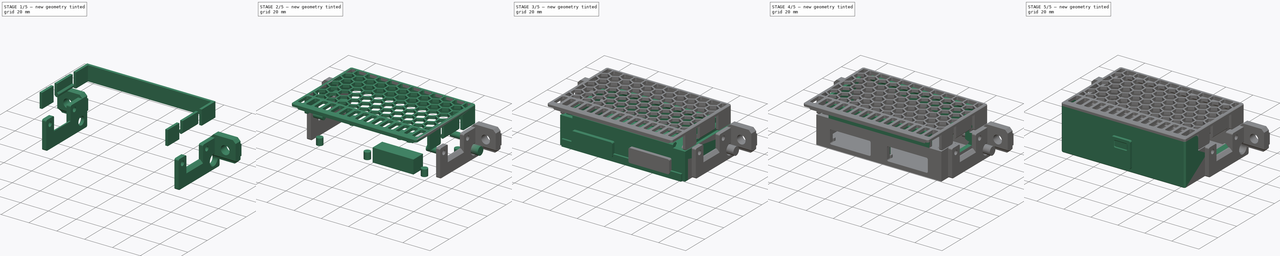
[diagram: build sequence overview — one tinted view per stage of 5, left to right]
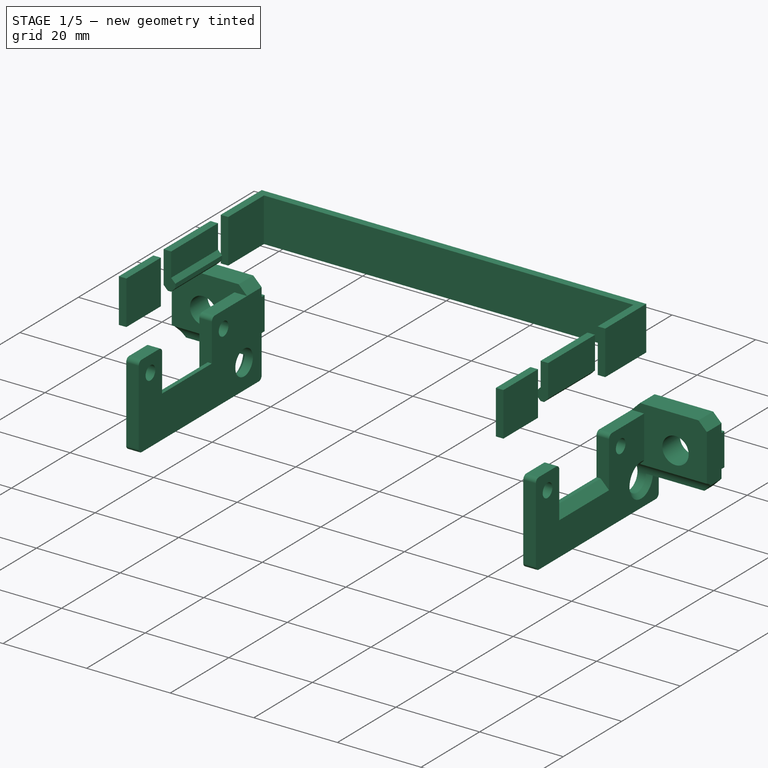
[diagram: stage 1 of 5 — iso view after this stage's code; geometry added in this stage tinted green]
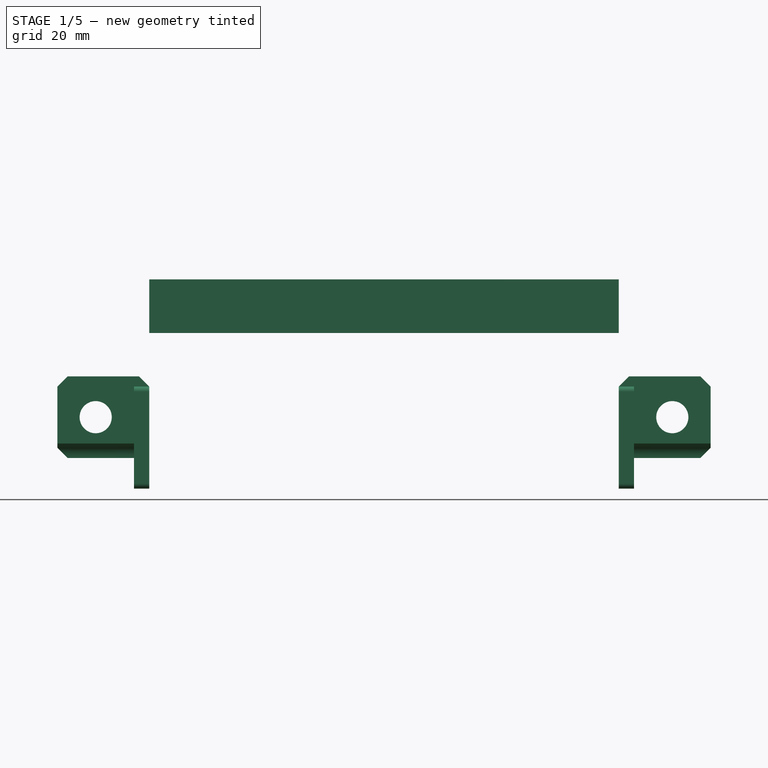
[diagram: stage 1 of 5 — front view after this stage's code; geometry added in this stage tinted green]
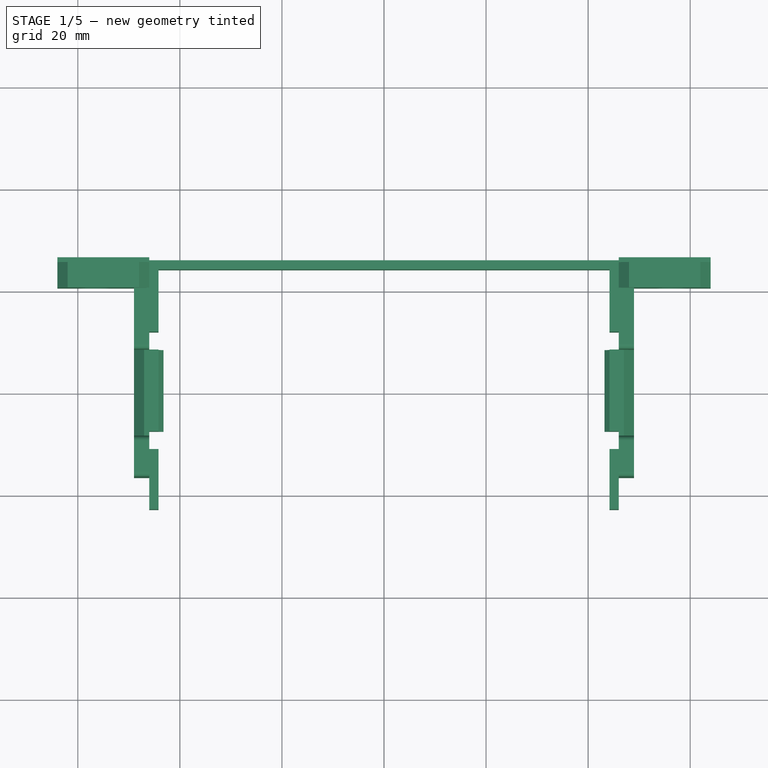
[diagram: stage 1 of 5 — top view after this stage's code; geometry added in this stage tinted green]
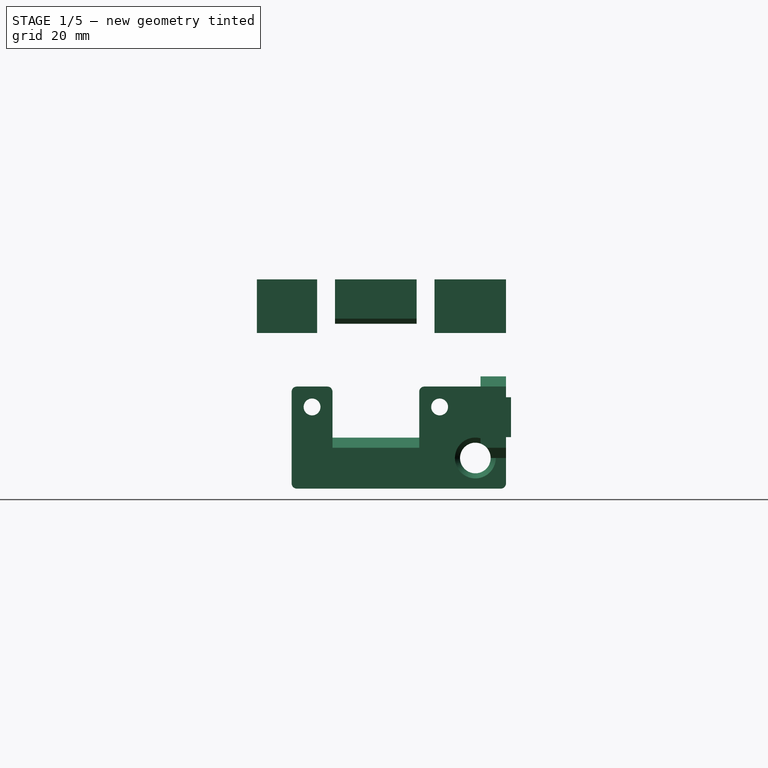
[diagram: stage 1 of 5 — right view after this stage's code; geometry added in this stage tinted green]
FCSTD DOCUMENT  (FreeCAD 0.19R24291 (Git))
Label: air-filter-4010-blower
License: Other
LicenseURL: GPL3
objects: Part::Box×53, Part::Feature×43, Part::MultiFuse×35, Part::Cylinder×27, Part::Chamfer×19, Part::Cut×19, Part::Fillet×15, Sketcher::SketchObject×3, PartDesign::Body×2, Part::Refine×2, PartDesign::AdditiveLoft×1, PartDesign::Pad×1, Part::MultiCommon×1, Part::Mirroring×1
note: 224 computed .brp shape members not serialized (recipe doc carries the construction recipe); baked Part::Feature solids carry a one-line shape summary decoded from their .brp

FEATURE [Part::Box] Box031  label="Cube031"
  AttacherType = Attacher::AttachEngine3D
  Height = 10.5
  Length = 92
  Placement = pos=(-46,23.7,30.5) rot=(0,0,1;0rad)
  Width = 1.8
FEATURE [Part::Box] Box033  label="Cube033"
  AttacherType = Attacher::AttachEngine3D
  Height = 10.5
  Length = 1.8
  Placement = pos=(-46,11.5,30.5) rot=(0,0,1;0rad)
  Width = 14
FEATURE [Part::Box] Box034  label="Cube034"
  AttacherType = Attacher::AttachEngine3D
  Height = 10.5
  Length = 1.8
  Placement = pos=(44.2,11.5,30.5) rot=(0,0,1;0rad)
  Width = 14
FEATURE [Part::Box] Box035  label="Cube035"
  AttacherType = Attacher::AttachEngine3D
  Height = 10.5
  Length = 1.8
  Placement = pos=(-46,-23.3,30.5) rot=(0,0,1;0rad)
  Width = 11.8
FEATURE [Part::Box] Box036  label="Cube036"
  AttacherType = Attacher::AttachEngine3D
  Height = 10.5
  Length = 1.8
  Placement = pos=(44.2,-23.3,30.5) rot=(0,0,1;0rad)
  Width = 11.8
FEATURE [Part::Box] Box037  label="Cube037"
  AttacherType = Attacher::AttachEngine3D
  Height = 7
  Length = 1.8
  Placement = pos=(-46,-8,34) rot=(0,0,1;0rad)
  Width = 16
FEATURE [Part::Box] Box038  label="Cube038"
  AttacherType = Attacher::AttachEngine3D
  Height = 7
  Length = 1.8
  Placement = pos=(44.2,-8,34) rot=(0,0,1;0rad)
  Width = 16
FEATURE [Part::Box] Box039  label="Cube039"
  AttacherType = Attacher::AttachEngine3D
  Height = 3
  Length = 2.8
  Placement = pos=(-46,-8,31) rot=(0,0,1;0rad)
  Width = 16
FEATURE [Part::Box] Box040  label="Cube040"
  AttacherType = Attacher::AttachEngine3D
  Height = 3
  Length = 2.8
  Placement = pos=(43.2,-8,31) rot=(0,0,1;0rad)
  Width = 16
FEATURE [Part::Chamfer] Chamfer005
  Base = -> Box039
  Edges = 2 edges r=1: [Edge6,Edge8]
  Placement = pos=(0,0,1.3) rot=(0,0,1;0rad)
FEATURE [Part::Chamfer] Chamfer006
  Base = -> Box040
  Edges = 2 edges r=1: [Edge2,Edge4]
  Placement = pos=(0,0,1.3) rot=(0,0,1;0rad)
FEATURE [Part::MultiFuse] Fusion001021003
  Shapes = -> [Chamfer006,Chamfer005,Box038,Box037]
FEATURE [Part::Chamfer] Chamfer007
  Base = -> Fusion001021003
  Edges = 2 edges r=1: [Edge22,Edge57]
FEATURE [Part::Cylinder] Cylinder046
  Angle = 360
  AttacherType = Attacher::AttachEngine3D
  Height = 23
  Placement = pos=(37,-12.5,16) rot=(0,1,0;1.5708rad)
  Radius = 1.65
FEATURE [Part::Cylinder] Cylinder047
  Angle = 360
  AttacherType = Attacher::AttachEngine3D
  Height = 23
  Placement = pos=(37,12.5,16) rot=(0,1,0;1.5708rad)
  Radius = 1.65
FEATURE [Part::Box] Box078  label="Cube076"
  AttacherType = Attacher::AttachEngine3D
  Height = 20
  Length = 3
  Placement = pos=(46,-16.5,0) rot=(0,0,1;0rad)
  Width = 8
FEATURE [Part::Box] Box079  label="Cube077"
  AttacherType = Attacher::AttachEngine3D
  Height = 20
  Length = 3
  Placement = pos=(46,8.5,0) rot=(0,0,1;0rad)
  Width = 17
FEATURE [Part::Box] Box080  label="Cube078"
  AttacherType = Attacher::AttachEngine3D
  Height = 10
  Length = 3
  Placement = pos=(46,-8.5,0) rot=(0,0,1;0rad)
  Width = 17
FEATURE [Part::Chamfer] Chamfer010015011014
  Base = -> Box080
  Edges = 1 edges r=2: [Edge6]
FEATURE [Part::Box] Box081  label="Cube079"
  AttacherType = Attacher::AttachEngine3D
  Height = 16
  Length = 18
  Placement = pos=(46,20.5,6) rot=(0,0,1;0rad)
  Width = 5
FEATURE [Part::Cylinder] Cylinder054
  Angle = 360
  AttacherType = Attacher::AttachEngine3D
  Height = 10
  Placement = pos=(56.5,17.5,14) rot=(0.57735,-0.57735,-0.57735;4.18879rad)
  Radius = 3.15
FEATURE [Part::Cylinder] Cylinder055
  Angle = 360
  AttacherType = Attacher::AttachEngine3D
  Height = 26
  Placement = pos=(40,19.5,6) rot=(0,1,0;1.5708rad)
  Radius = 3
FEATURE [Part::Fillet] Fillet005015030019016
  Base = -> Box078
  Edges = 3 edges r=1: [Edge9,Edge10,Edge12]
FEATURE [Part::Fillet] Fillet005015030019017
  Base = -> Box079
  Edges = 2 edges r=1: [Edge10,Edge11]
FEATURE [Part::Chamfer] Chamfer010015011015
  Base = -> Box081
  Edges = 3 edges r=2: [Edge2,Edge6,Edge8]
FEATURE [Part::MultiFuse] Fusion001021004009015013018008006003
  Shapes = -> [Cylinder046,Cylinder047]
FEATURE [Part::Box] Box082  label="Cube080"
  AttacherType = Attacher::AttachEngine3D
  Height = 7.8
  Length = 18
  Placement = pos=(46,25.5,10.1) rot=(0,0,1;0rad)
  Width = 1
FEATURE [Part::MultiFuse] Fusion001021004009015013018008006004
  Shapes = -> [Chamfer010015011015,Box082]
FEATURE [Part::Cut] Cut019003010005001012
  Base = -> Fusion001021004009015013018008006004
  Tool = -> Cylinder054
FEATURE [Part::MultiFuse] Fusion001021004009015013018008006005
  Shapes = -> [Cut019003010005001012,Fillet005015030019017,Chamfer010015011014,Fillet005015030019016]
FEATURE [Part::Cut] Cut019003010005001013
  Base = -> Fusion001021004009015013018008006005
  Tool = -> Fusion001021004009015013018008006003
FEATURE [Part::Cut] Cut019003010005001014
  Base = -> Cut019003010005001013
  Tool = -> Cylinder055
FEATURE [Part::Chamfer] Chamfer010015011016
  Base = -> Cut019003010005001014
  Edges = 1 edges r=1: [Edge35]
FEATURE [Part::Feature] Chamfer010015011016001
  shape: bbox 18 x 43 x 22 mm, 45 faces (baked)
FEATURE [Part::Mirroring] Part__Mirroring  label="Chamfer010015011016001 (Mirror #1)"
  Base = (0,0,0)
  Normal = (1,0,0)
  Source = -> Chamfer010015011016001
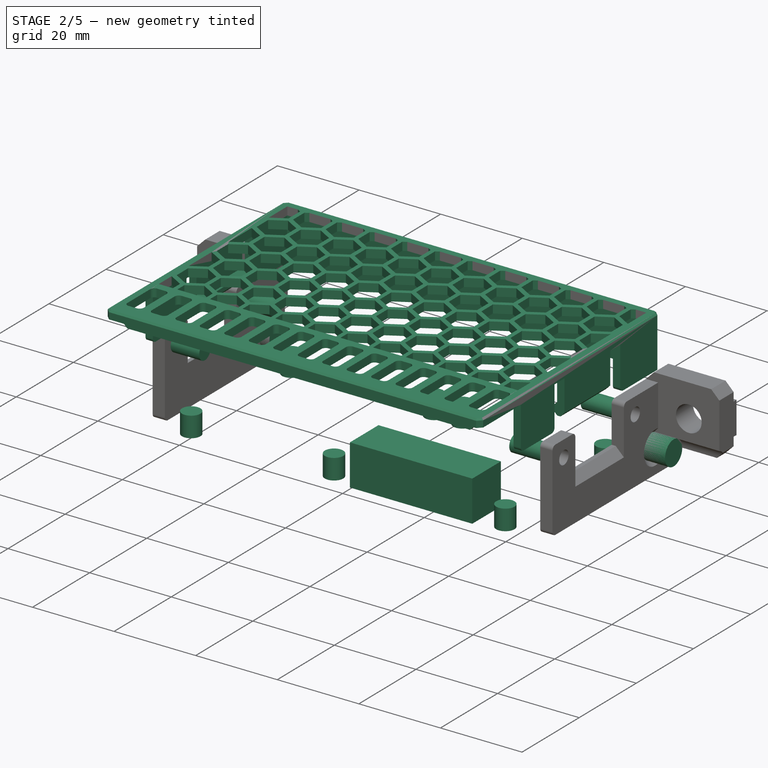
[diagram: stage 2 of 5 — iso view after this stage's code; geometry added in this stage tinted green]
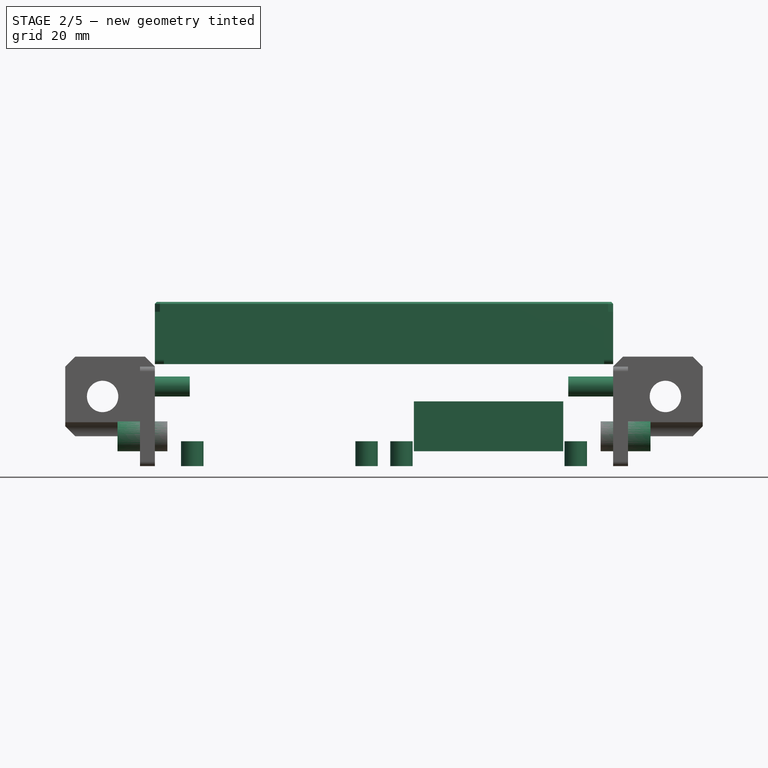
[diagram: stage 2 of 5 — front view after this stage's code; geometry added in this stage tinted green]
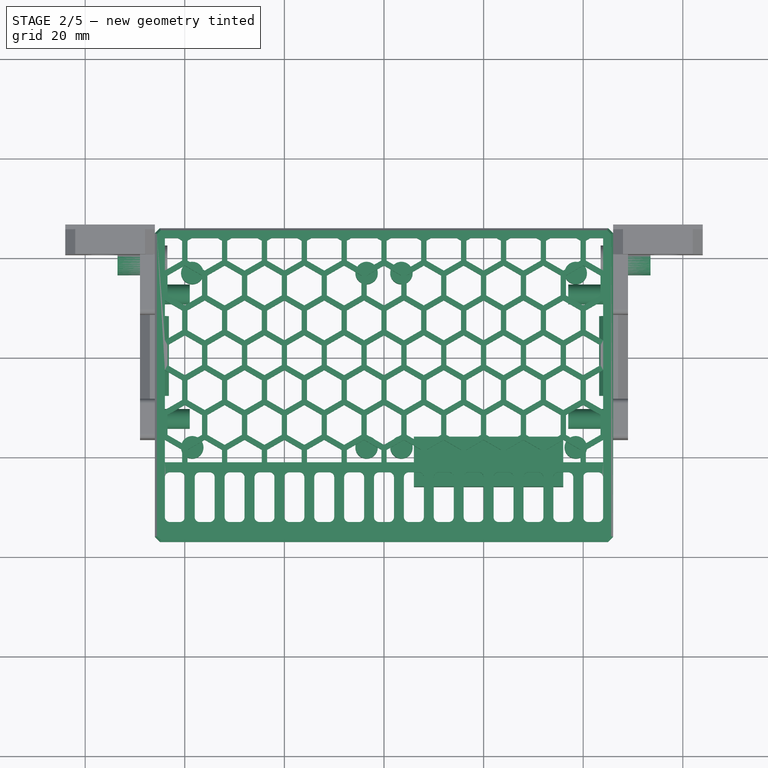
[diagram: stage 2 of 5 — top view after this stage's code; geometry added in this stage tinted green]
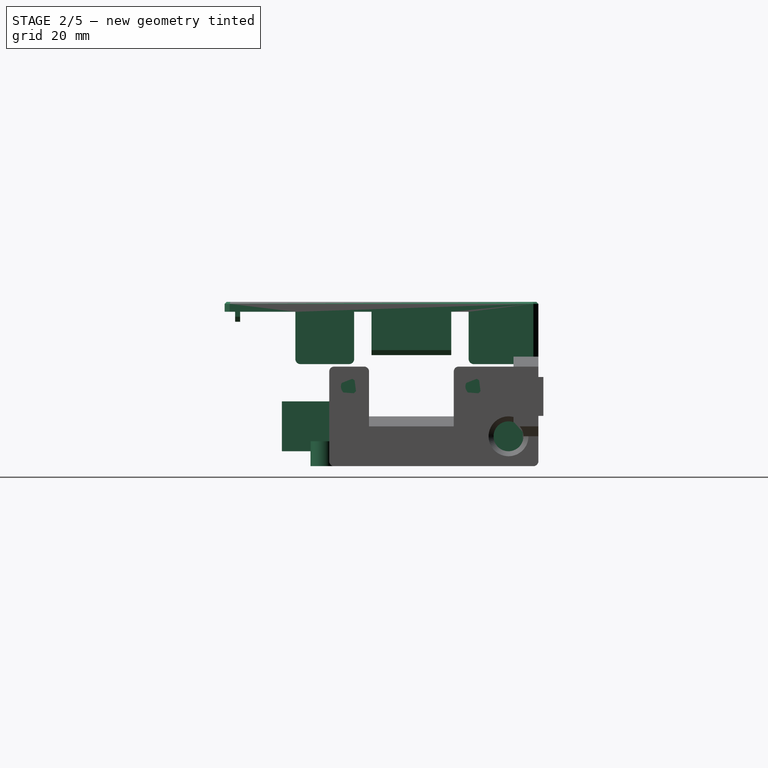
[diagram: stage 2 of 5 — right view after this stage's code; geometry added in this stage tinted green]
FEATURE [Part::Box] Box041  label="Cube041"
  AttacherType = Attacher::AttachEngine3D
  Height = 2
  Length = 92
  Placement = pos=(-46,-24,41) rot=(0,0,1;0rad)
  Width = 49.5
FEATURE [Part::Feature] Body002001  label="hex"
  Placement = pos=(0,0,36) rot=(0,0,1;0rad)
  shape: bbox 6.928 x 8 x 10 mm, 8 faces (baked)
FEATURE [Part::Feature] Body002002  label="hex001"
  Placement = pos=(8,0,36) rot=(0,0,1;0rad)
  shape: bbox 6.928 x 8 x 10 mm, 8 faces (baked)
FEATURE [Part::Feature] Body002003  label="hex002"
  Placement = pos=(16,0,36) rot=(0,0,1;0rad)
  shape: bbox 6.928 x 8 x 10 mm, 8 faces (baked)
FEATURE [Part::Feature] Body002004  label="hex003"
  Placement = pos=(24,0,36) rot=(0,0,1;0rad)
  shape: bbox 6.928 x 8 x 10 mm, 8 faces (baked)
FEATURE [Part::Feature] Body002005  label="hex004"
  Placement = pos=(32,0,36) rot=(0,0,1;0rad)
  shape: bbox 6.928 x 8 x 10 mm, 8 faces (baked)
FEATURE [Part::Feature] Body002006  label="hex005"
  Placement = pos=(40,0,36) rot=(0,0,1;0rad)
  shape: bbox 6.928 x 8 x 10 mm, 8 faces (baked)
FEATURE [Part::Feature] Body002007  label="hex006"
  Placement = pos=(-8,0,36) rot=(0,0,1;0rad)
  shape: bbox 6.928 x 8 x 10 mm, 8 faces (baked)
FEATURE [Part::Feature] Body002008  label="hex007"
  Placement = pos=(-16,0,36) rot=(0,0,1;0rad)
  shape: bbox 6.928 x 8 x 10 mm, 8 faces (baked)
FEATURE [Part::Feature] Body002009  label="hex008"
  Placement = pos=(-24,0,36) rot=(0,0,1;0rad)
  shape: bbox 6.928 x 8 x 10 mm, 8 faces (baked)
FEATURE [Part::Feature] Body002010  label="hex009"
  Placement = pos=(-32,0,36) rot=(0,0,1;0rad)
  shape: bbox 6.928 x 8 x 10 mm, 8 faces (baked)
FEATURE [Part::Feature] Body002011  label="hex010"
  Placement = pos=(-40,0,36) rot=(0,0,1;0rad)
  shape: bbox 6.928 x 8 x 10 mm, 8 faces (baked)
FEATURE [Part::Feature] Body002012  label="hex011"
  Placement = pos=(-48,0,36) rot=(0,0,1;0rad)
  shape: bbox 6.928 x 8 x 10 mm, 8 faces (baked)
FEATURE [Part::Feature] Body002013  label="hex012"
  Placement = pos=(48,0,36) rot=(0,0,1;0rad)
  shape: bbox 6.928 x 8 x 10 mm, 8 faces (baked)
FEATURE [Part::MultiFuse] Fusion001021004
  Shapes = -> [Body002013,Body002012,Body002011,Body002009,Body002010,Body002008,Body002007,Body002006,Body002005,Body002004,Body002003,Body002002,Body002001]
FEATURE [Part::Feature] Fusion001021004001
  Placement = pos=(4,7,0) rot=(0,0,1;0rad)
  shape: bbox 102.9 x 8 x 10 mm, 104 faces, 13 solids (baked)
FEATURE [Part::Feature] Fusion001021004002
  Placement = pos=(4,-7,0) rot=(0,0,1;0rad)
  shape: bbox 102.9 x 8 x 10 mm, 104 faces, 13 solids (baked)
FEATURE [Part::Feature] Fusion001021004003
  Placement = pos=(4,-21,0) rot=(0,0,1;0rad)
  shape: bbox 102.9 x 8 x 10 mm, 104 faces, 13 solids (baked)
FEATURE [Part::Feature] Fusion001021004004
  Placement = pos=(4,21,0) rot=(0,0,1;0rad)
  shape: bbox 102.9 x 8 x 10 mm, 104 faces, 13 solids (baked)
FEATURE [Part::Feature] Fusion001021004005
  Placement = pos=(0,14,0) rot=(0,0,1;0rad)
  shape: bbox 102.9 x 8 x 10 mm, 104 faces, 13 solids (baked)
FEATURE [Part::Feature] Fusion001021004006
  Placement = pos=(0,-14,0) rot=(0,0,1;0rad)
  shape: bbox 102.9 x 8 x 10 mm, 104 faces, 13 solids (baked)
FEATURE [Part::MultiFuse] Fusion001021004007
  Shapes = -> [Fusion001021004006,Fusion001021004005,Fusion001021004004,Fusion001021004003,Fusion001021004002,Fusion001021004001,Fusion001021004]
FEATURE [Part::Box] Box042  label="Cube042"
  AttacherType = Attacher::AttachEngine3D
  Height = 2
  Length = 88
  Placement = pos=(-44,-21.5,41) rot=(0,0,1;0rad)
  Width = 45
FEATURE [Part::Box] Box046  label="Cube044"
  AttacherType = Attacher::AttachEngine3D
  Height = 2
  Length = 92
  Placement = pos=(-46,-37.5,41) rot=(0,0,1;0rad)
  Width = 13.5
FEATURE [Part::Box] Box072  label="Cube070"
  AttacherType = Attacher::AttachEngine3D
  Height = 10
  Length = 30
  Placement = pos=(6,-26,3) rot=(0,0,1;0rad)
  Width = 10
FEATURE [Part::Cylinder] Cylinder042
  Angle = 360
  AttacherType = Attacher::AttachEngine3D
  Height = 5
  Placement = pos=(3.5,-18,0) rot=(0,0,1;0rad)
  Radius = 2.25
FEATURE [Part::Cylinder] Cylinder043
  Angle = 360
  AttacherType = Attacher::AttachEngine3D
  Height = 5
  Placement = pos=(38.5,-18,0) rot=(0,0,1;0rad)
  Radius = 2.25
FEATURE [Part::Cylinder] Cylinder044
  Angle = 360
  AttacherType = Attacher::AttachEngine3D
  Height = 5
  Placement = pos=(38.5,17,0) rot=(0,0,1;0rad)
  Radius = 2.25
FEATURE [Part::Cylinder] Cylinder045
  Angle = 360
  AttacherType = Attacher::AttachEngine3D
  Height = 5
  Placement = pos=(3.5,17,0) rot=(0,0,1;0rad)
  Radius = 2.25
FEATURE [Part::MultiFuse] Fusion001021004009015013017
  Shapes = -> [Cylinder045,Cylinder044,Cylinder043,Cylinder042]
FEATURE [Part::Feature] Fusion001021004009015013017001
  Placement = pos=(-42,0,0) rot=(0,0,1;0rad)
  shape: bbox 39.5 x 39.5 x 5 mm, 12 faces, 4 solids (baked)
FEATURE [Part::MultiFuse] Fusion001021004009015013017002
  Shapes = -> [Fusion001021004009015013017001,Fusion001021004009015013017]
FEATURE [Part::Cylinder] Cylinder048
  Angle = 360
  AttacherType = Attacher::AttachEngine3D
  Height = 10
  Placement = pos=(-49,12.5,16) rot=(0,1,0;1.5708rad)
  Radius = 2
FEATURE [Part::Cylinder] Cylinder049
  Angle = 360
  AttacherType = Attacher::AttachEngine3D
  Height = 10
  Placement = pos=(-49,-12.5,16) rot=(0,1,0;1.5708rad)
  Radius = 2
FEATURE [Part::Cylinder] Cylinder050
  Angle = 360
  AttacherType = Attacher::AttachEngine3D
  Height = 10
  Placement = pos=(37,12.5,16) rot=(0,1,0;1.5708rad)
  Radius = 2
FEATURE [Part::Cylinder] Cylinder051
  Angle = 360
  AttacherType = Attacher::AttachEngine3D
  Height = 10
  Placement = pos=(37,-12.5,16) rot=(0,1,0;1.5708rad)
  Radius = 2
FEATURE [Part::MultiFuse] Fusion001021004009015013018006
  Shapes = -> [Cylinder051,Cylinder050,Cylinder049,Cylinder048]
FEATURE [Part::Cylinder] Cylinder052
  Angle = 360
  AttacherType = Attacher::AttachEngine3D
  Height = 10
  Placement = pos=(43.5,19.5,6) rot=(0,1,0;1.5708rad)
  Radius = 3
FEATURE [Part::Cylinder] Cylinder053
  Angle = 360
  AttacherType = Attacher::AttachEngine3D
  Height = 10
  Placement = pos=(-53.5,19.5,6) rot=(0,1,0;1.5708rad)
  Radius = 3
FEATURE [Part::MultiFuse] Fusion001021004009015013018007
  Shapes = -> [Cylinder052,Cylinder053]
FEATURE [Part::Box] Box076  label="Cube074"
  AttacherType = Attacher::AttachEngine3D
  Height = 2
  Length = 86
  Placement = pos=(-43,-35.4,39) rot=(0,0,1;0rad)
  Width = 1
FEATURE [Part::MultiCommon] Common
  Shapes = -> [Box042,Fusion001021004007]
FEATURE [Part::Cut] Cut019003010005001010
  Base = -> Box041
  Tool = -> Common
FEATURE [Part::Chamfer] Chamfer010015011011
  Base = -> Box076
  Edges = 2 edges r=1: [Edge4,Edge8]
FEATURE [Part::MultiFuse] Fusion001021004009015013018008002
  Shapes = -> [Box046,Chamfer010015011011]
FEATURE [Part::Box] Box077  label="Cube075"
  AttacherType = Attacher::AttachEngine3D
  Height = 10
  Length = 4
  Placement = pos=(-2,-33.5,35) rot=(0,0,1;0rad)
  Width = 10
FEATURE [Part::MultiFuse] Fusion001021004009015013018008003
  Shapes = -> [Cut019003010005001010,Fusion001021004009015013018008002]
FEATURE [Part::Fillet] Fillet005015030019
  Base = -> Box077
  Edges = 4 edges r=1: [Edge1,Edge3,Edge5,Edge7]
FEATURE [Part::Feature] Fillet005015030019001
  Placement = pos=(6,0,0) rot=(0,0,1;0rad)
  shape: bbox 4 x 10 x 10 mm, 10 faces (baked)
FEATURE [Part::Feature] Fillet005015030019002
  Placement = pos=(12,0,0) rot=(0,0,1;0rad)
  shape: bbox 4 x 10 x 10 mm, 10 faces (baked)
FEATURE [Part::Feature] Fillet005015030019003
  Placement = pos=(18,0,0) rot=(0,0,1;0rad)
  shape: bbox 4 x 10 x 10 mm, 10 faces (baked)
FEATURE [Part::Feature] Fillet005015030019004
  Placement = pos=(24,0,0) rot=(0,0,1;0rad)
  shape: bbox 4 x 10 x 10 mm, 10 faces (baked)
FEATURE [Part::Feature] Fillet005015030019005
  Placement = pos=(30,0,0) rot=(0,0,1;0rad)
  shape: bbox 4 x 10 x 10 mm, 10 faces (baked)
FEATURE [Part::Feature] Fillet005015030019006
  Placement = pos=(36,0,0) rot=(0,0,1;0rad)
  shape: bbox 4 x 10 x 10 mm, 10 faces (baked)
FEATURE [Part::Feature] Fillet005015030019007
  Placement = pos=(42,0,0) rot=(0,0,1;0rad)
  shape: bbox 4 x 10 x 10 mm, 10 faces (baked)
FEATURE [Part::Feature] Fillet005015030019008
  Placement = pos=(-6,0,0) rot=(0,0,1;0rad)
  shape: bbox 4 x 10 x 10 mm, 10 faces (baked)
FEATURE [Part::Feature] Fillet005015030019009
  Placement = pos=(-12,0,0) rot=(0,0,1;0rad)
  shape: bbox 4 x 10 x 10 mm, 10 faces (baked)
FEATURE [Part::Feature] Fillet005015030019010
  Placement = pos=(-18,0,0) rot=(0,0,1;0rad)
  shape: bbox 4 x 10 x 10 mm, 10 faces (baked)
FEATURE [Part::Feature] Fillet005015030019011
  Placement = pos=(-30,0,0) rot=(0,0,1;0rad)
  shape: bbox 4 x 10 x 10 mm, 10 faces (baked)
FEATURE [Part::Feature] Fillet005015030019012
  Placement = pos=(-24,0,0) rot=(0,0,1;0rad)
  shape: bbox 4 x 10 x 10 mm, 10 faces (baked)
FEATURE [Part::Feature] Fillet005015030019013
  Placement = pos=(-36,0,0) rot=(0,0,1;0rad)
  shape: bbox 4 x 10 x 10 mm, 10 faces (baked)
FEATURE [Part::Feature] Fillet005015030019014
  Placement = pos=(-42,0,0) rot=(0,0,1;0rad)
  shape: bbox 4 x 10 x 10 mm, 10 faces (baked)
FEATURE [Part::MultiFuse] Fusion001021004009015013018008004
  Shapes = -> [Fillet005015030019014,Fillet005015030019001,Fillet005015030019002,Fillet005015030019003,Fillet005015030019004,Fillet005015030019005,Fillet005015030019006,Fillet005015030019007,Fillet005015030019008,Fillet005015030019009,Fillet005015030019010,Fillet005015030019011,Fillet005015030019012,Fillet005015030019013,Fillet005015030019]
FEATURE [Part::Cut] Cut019003010005001011
  Base = -> Fusion001021004009015013018008003
  Tool = -> Fusion001021004009015013018008004
FEATURE [Part::MultiFuse] Fusion001021004009015013018008005
  Shapes = -> [Box035,Chamfer007,Box033,Box036,Box034,Box031]
FEATURE [Part::MultiFuse] Fusion001021004009015013018008006
  Shapes = -> [Fusion001021004009015013018008005,Cut019003010005001011]
FEATURE [Part::Refine] Fusion001021004009015013018008006001
  Source = -> Fusion001021004009015013018008006
FEATURE [Part::Chamfer] Chamfer010015011012
  Base = -> Fusion001021004009015013018008006001
  Edges = 4 edges r=1: [Edge26,Edge28,Edge57,Edge1899]
FEATURE [Part::Fillet] Fillet005015030019015
  Base = -> Chamfer010015011012
  Edges = 6 edges r=1: [Edge666,Edge1296,Edge1304,Edge1308,Edge1333,Edge1338]
FEATURE [Part::Chamfer] Chamfer010015011013
  Base = -> Fillet005015030019015
  Edges = 8 edges r=0.4: [Edge16,Edge29,Edge33,Edge34,Edge35,Edge36,Edge37,Edge38]
  Placement = pos=(0,0,-10) rot=(0,0,1;0rad)
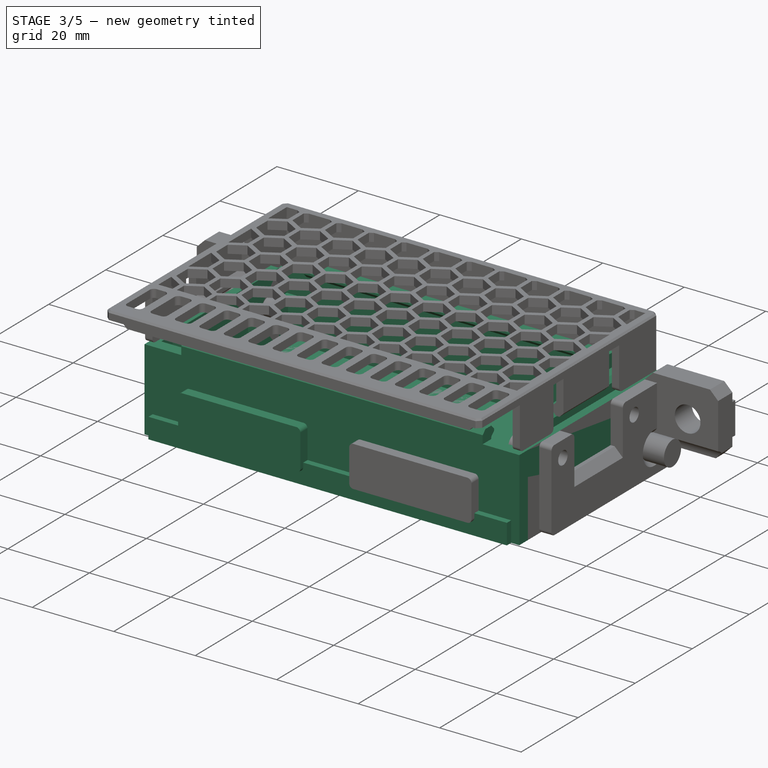
[diagram: stage 3 of 5 — iso view after this stage's code; geometry added in this stage tinted green]
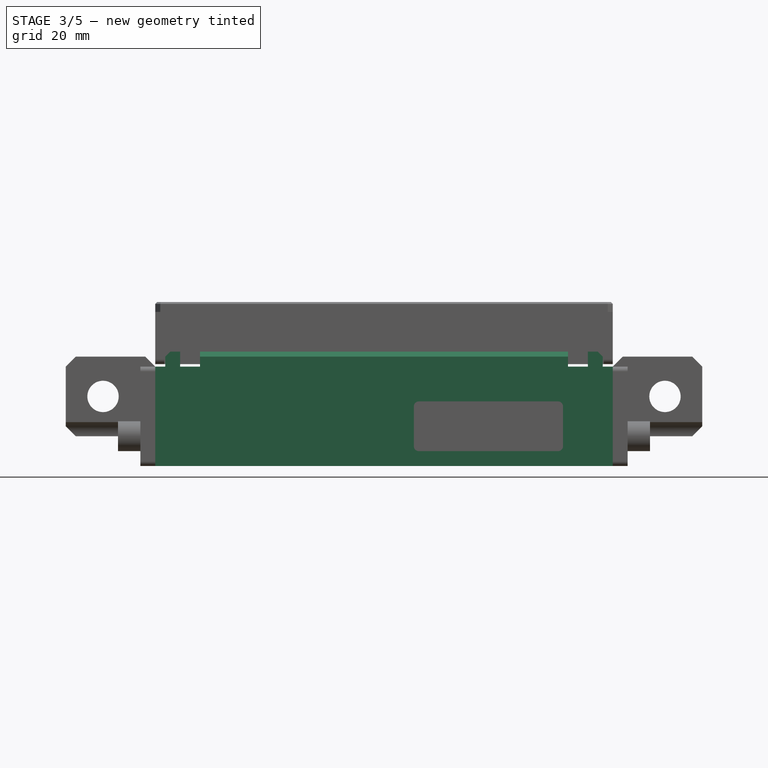
[diagram: stage 3 of 5 — front view after this stage's code; geometry added in this stage tinted green]
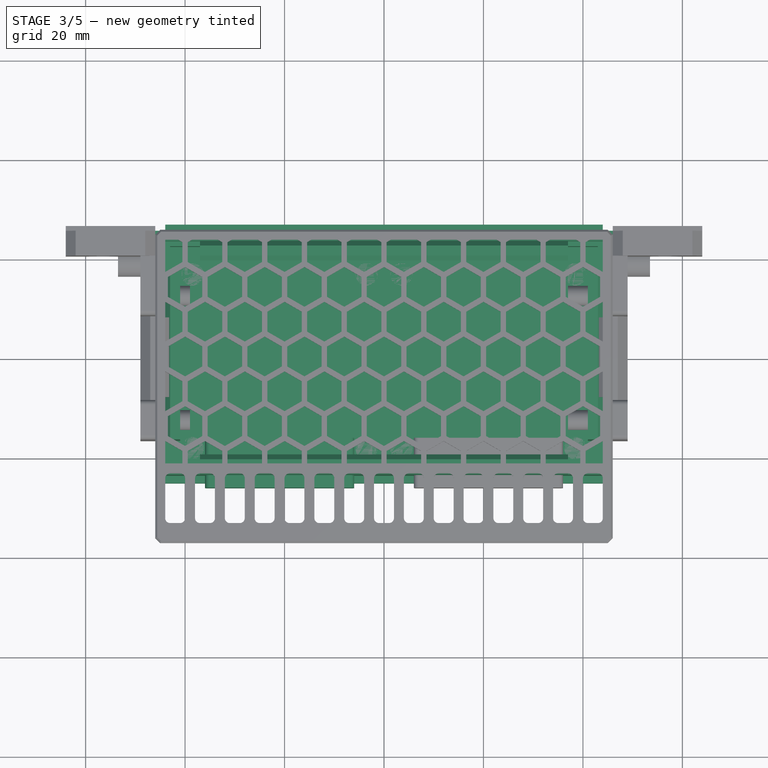
[diagram: stage 3 of 5 — top view after this stage's code; geometry added in this stage tinted green]
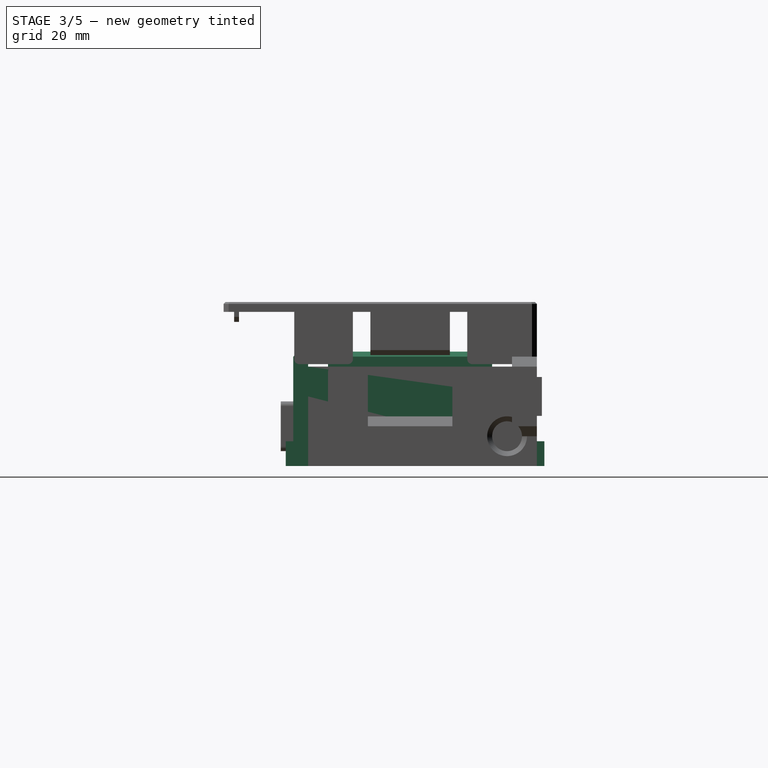
[diagram: stage 3 of 5 — right view after this stage's code; geometry added in this stage tinted green]
FEATURE [Sketcher::SketchObject] Sketch
  AttachmentOffset = pos=(0,0,5) rot=(0,0,1;0rad)
  FullyConstrained = true
  MapMode = 5
  Placement = pos=(0,0,5) rot=(0,0,1;0rad)
  Support = -> [XY_Plane]
  sketch-geometry (4):
    g0: LineSegment StartX=-40 StartY=20 StartZ=0 EndX=40 EndY=20 EndZ=0
    g1: LineSegment StartX=40 StartY=20 StartZ=0 EndX=40 EndY=-20 EndZ=0
    g2: LineSegment StartX=40 StartY=-20 StartZ=0 EndX=-40 EndY=-20 EndZ=0
    g3: LineSegment StartX=-40 StartY=-20 StartZ=0 EndX=-40 EndY=20 EndZ=0
  constraints (12):
    c: Coincident(g0,g1)
    c: Coincident(g1,g2)
    c: Coincident(g2,g3)
    c: Coincident(g3,g0)
    c: Horizontal(g0)
    c: Horizontal(g2)
    c: Vertical(g1)
    c: Vertical(g3)
    c: DistanceX(g0,g0) = 80
    c: DistanceX(g0,g-1) = 40
    c: DistanceY(g3,g3) = 40
    c: DistanceY(g-1,g0) = 20
FEATURE [Sketcher::SketchObject] Sketch001
  FullyConstrained = true
  MapMode = 5
  Support = -> [XY_Plane]
  sketch-geometry (1):
    g0: Circle CenterX=0 CenterY=0 CenterZ=0 NormalX=0 NormalY=0 NormalZ=1 AngleXU=0 Radius=19
  constraints (2):
    c: Coincident(g0,g-1)
    c: Radius(g0) = 19
FEATURE [PartDesign::AdditiveLoft] AdditiveLoft
  Closed = false
  Profile = -> Sketch
  Ruled = true
  Sections = -> [Sketch001]
FEATURE [Part::Box] Box001  label="Cube001"
  AttacherType = Attacher::AttachEngine3D
  Height = 3
  Length = 7
  Placement = pos=(-44,16.5,0) rot=(0,0,1;0rad)
  Width = 7
FEATURE [Part::Box] Box002  label="Cube002"
  AttacherType = Attacher::AttachEngine3D
  Height = 3
  Length = 7
  Placement = pos=(37,16.5,0) rot=(0,0,1;0rad)
  Width = 7
FEATURE [Part::Box] Box003  label="Cube003"
  AttacherType = Attacher::AttachEngine3D
  Height = 3
  Length = 7
  Placement = pos=(37,-23.5,0) rot=(0,0,1;0rad)
  Width = 7
FEATURE [Part::Box] Box004  label="Cube004"
  AttacherType = Attacher::AttachEngine3D
  Height = 18
  Length = 3
  Placement = pos=(-44,-16.5,5) rot=(0,0,1;0rad)
  Width = 33
FEATURE [Part::Box] Box005  label="Cube005"
  AttacherType = Attacher::AttachEngine3D
  Height = 18
  Length = 3
  Placement = pos=(41,-16.5,5) rot=(0,0,1;0rad)
  Width = 33
FEATURE [Part::Box] Box006  label="Cube006"
  AttacherType = Attacher::AttachEngine3D
  Height = 18
  Length = 74
  Placement = pos=(-37,20.5,5) rot=(0,0,1;0rad)
  Width = 3
FEATURE [Part::Box] Box007  label="Cube007"
  AttacherType = Attacher::AttachEngine3D
  Height = 18
  Length = 74
  Placement = pos=(-37,-23.5,5) rot=(0,0,1;0rad)
  Width = 3
FEATURE [Part::Box] Box010  label="Cube010"
  AttacherType = Attacher::AttachEngine3D
  Height = 2.5
  Length = 74
  Placement = pos=(-37,19.5,21) rot=(0,0,1;0rad)
  Width = 2
FEATURE [Part::Box] Box011  label="Cube011"
  AttacherType = Attacher::AttachEngine3D
  Height = 2.5
  Length = 74
  Placement = pos=(-37,-21.5,21) rot=(0,0,1;0rad)
  Width = 2
FEATURE [Part::MultiFuse] Fusion001005
  Shapes = -> [Box004,Box007,Box006,Box005]
FEATURE [Part::Chamfer] Chamfer001
  Base = -> Fusion001005
  Edges = 4 edges r=1: [Edge2,Edge22,Edge36,Edge42]
FEATURE [PartDesign::Pad] Pad
  Direction = (1,1,1)
  Length = 5
  Length2 = 100
  Profile = -> Sketch002
  Type = 0
FEATURE [PartDesign::Body] Body001  label="duct-plate"
  Group = -> [Sketch002,Pad]
  Origin = -> Origin001
  Tip = -> Pad
FEATURE [Part::Cut] Cut
  Base = -> Body001
  Tool = -> Body
FEATURE [Part::Box] Box012  label="Cube012"
  AttacherType = Attacher::AttachEngine3D
  Height = 10
  Length = 10
  Placement = pos=(38,-8.5,5) rot=(0,0,1;0rad)
  Width = 17
FEATURE [Part::Box] Box013  label="Cube013"
  AttacherType = Attacher::AttachEngine3D
  Height = 10
  Length = 10
  Placement = pos=(-47,-8.5,5) rot=(0,0,1;0rad)
  Width = 17
FEATURE [Part::MultiFuse] Fusion001009
  Shapes = -> [Box013,Box012]
FEATURE [Part::Box] Box014  label="Cube014"
  AttacherType = Attacher::AttachEngine3D
  Height = 3
  Length = 92
  Placement = pos=(-46,-23.5,0) rot=(0,0,1;0rad)
  Width = 49
FEATURE [Part::Box] Box015  label="Cube015"
  AttacherType = Attacher::AttachEngine3D
  Height = 14
  Length = 3
  Placement = pos=(-46,-23.5,0) rot=(0,0,1;0rad)
  Width = 49
FEATURE [Part::Box] Box016  label="Cube016"
  AttacherType = Attacher::AttachEngine3D
  Height = 14
  Length = 3
  Placement = pos=(43,-23.5,0) rot=(0,0,1;0rad)
  Width = 49
FEATURE [Part::Box] Box017  label="Cube017"
  AttacherType = Attacher::AttachEngine3D
  Height = 14
  Length = 92
  Placement = pos=(-46,22.5,0) rot=(0,0,1;0rad)
  Width = 3
FEATURE [Part::Box] Box018  label="Cube018"
  AttacherType = Attacher::AttachEngine3D
  Height = 20
  Length = 2
  Placement = pos=(-46,-23.5,0) rot=(0,0,1;0rad)
  Width = 49
FEATURE [Part::Box] Box019  label="Cube019"
  AttacherType = Attacher::AttachEngine3D
  Height = 20
  Length = 2
  Placement = pos=(44,-23.5,0) rot=(0,0,1;0rad)
  Width = 49
FEATURE [Part::Box] Box020  label="Cube020"
  AttacherType = Attacher::AttachEngine3D
  Height = 20
  Length = 92
  Placement = pos=(-46,23.5,0) rot=(0,0,1;0rad)
  Width = 2
FEATURE [Part::Box] Box026  label="Cube026"
  AttacherType = Attacher::AttachEngine3D
  Height = 20
  Length = 92
  Placement = pos=(-46,-23.5,0) rot=(0,0,1;0rad)
  Width = 3
FEATURE [Part::MultiFuse] Fusion001021004009015002
  Shapes = -> [Box011,Box010]
FEATURE [Part::Chamfer] Chamfer
  Base = -> Fusion001021004009015002
  Edges = 4 edges r=1: [Edge11,Edge12,Edge21,Edge22]
  Placement = pos=(0,0,-0.5) rot=(0,0,1;0rad)
FEATURE [Part::MultiFuse] Fusion001021004009015003
  Shapes = -> [Chamfer,Chamfer001]
FEATURE [Part::Cut] Cut015
  Base = -> Fusion001021004009015003
  Tool = -> Fusion001009
FEATURE [Part::Box] Box068  label="Cube066"
  AttacherType = Attacher::AttachEngine3D
  Height = 5
  Length = 88
  Placement = pos=(-44,-25,0) rot=(0,0,1;0rad)
  Width = 52
FEATURE [Part::MultiFuse] Fusion001021004009015013011
  Shapes = -> [Box026,Box014,Box015,Box016,Box017,Box018,Box019,Box020]
FEATURE [Part::Feature] Fusion036012039009  label="4010-fan001"
  Placement = pos=(-21.1,-20.5,3) rot=(-1,0,0;1.5708rad)
  shape: bbox 40 x 40 x 10 mm, 256 faces, 2 solids (baked)
FEATURE [Part::Feature] Fusion001021004009015013015  label="4010-fan002"
  Placement = pos=(20.9,-20.5,3) rot=(-1,0,0;1.5708rad)
  shape: bbox 40 x 40 x 10 mm, 256 faces, 2 solids (baked)
FEATURE [Part::Box] Box071  label="Cube069"
  AttacherType = Attacher::AttachEngine3D
  Height = 10
  Length = 30
  Placement = pos=(-36,-26,3) rot=(0,0,1;0rad)
  Width = 10
FEATURE [Part::MultiFuse] Fusion001021004009015013016
  Shapes = -> [Box071,Box072]
FEATURE [Part::Fillet] Fillet005015030015
  Base = -> Fusion001021004009015013016
  Edges = 8 edges r=1: [Edge2,Edge4,Edge6,Edge8,Edge14,Edge16,Edge18,Edge20]
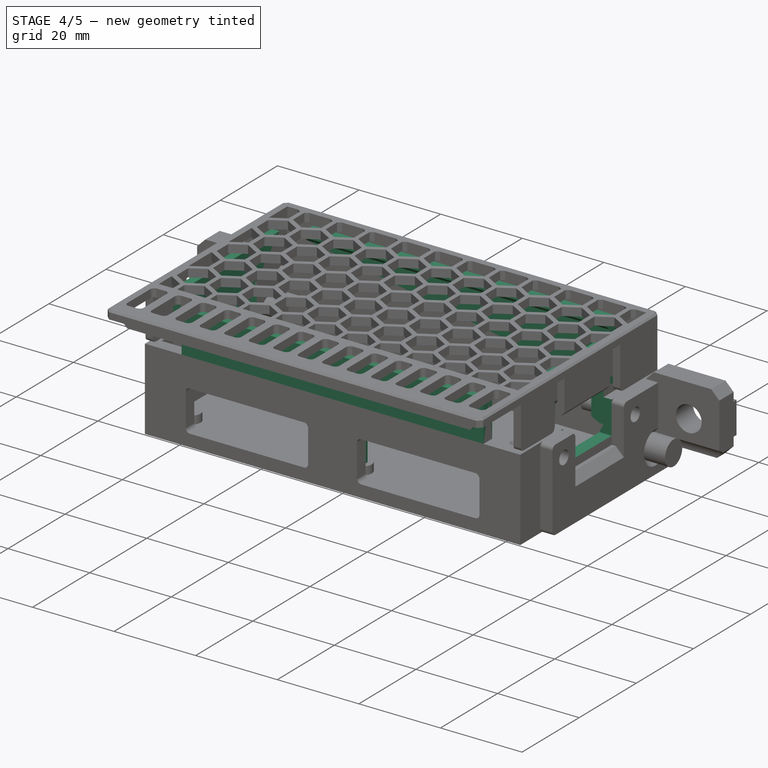
[diagram: stage 4 of 5 — iso view after this stage's code; geometry added in this stage tinted green]
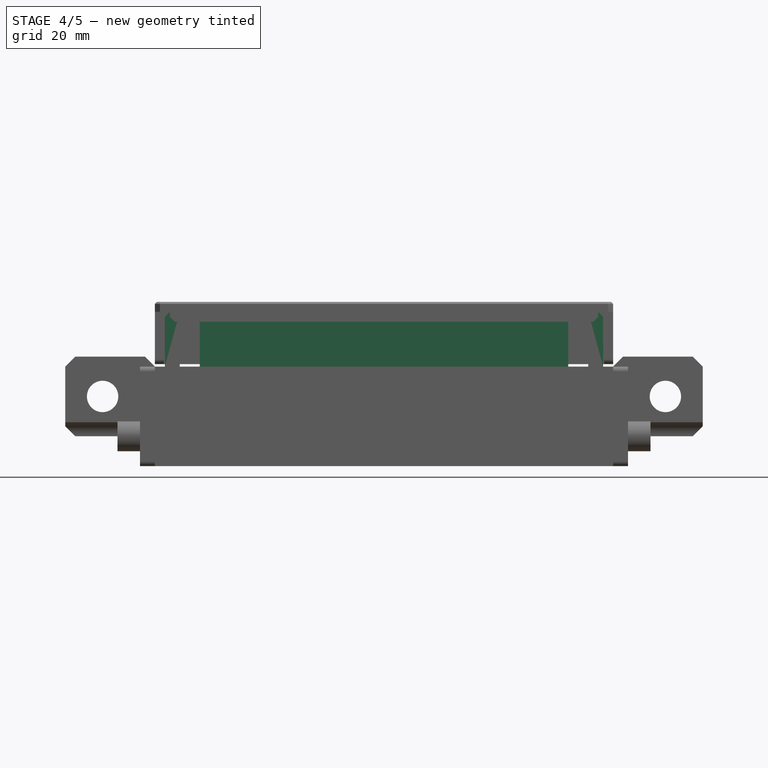
[diagram: stage 4 of 5 — front view after this stage's code; geometry added in this stage tinted green]
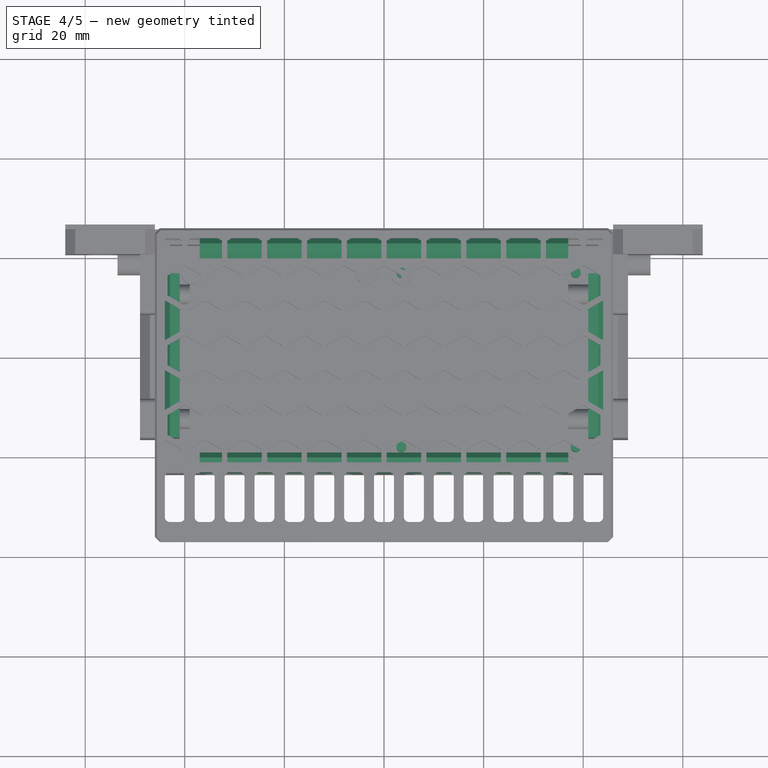
[diagram: stage 4 of 5 — top view after this stage's code; geometry added in this stage tinted green]
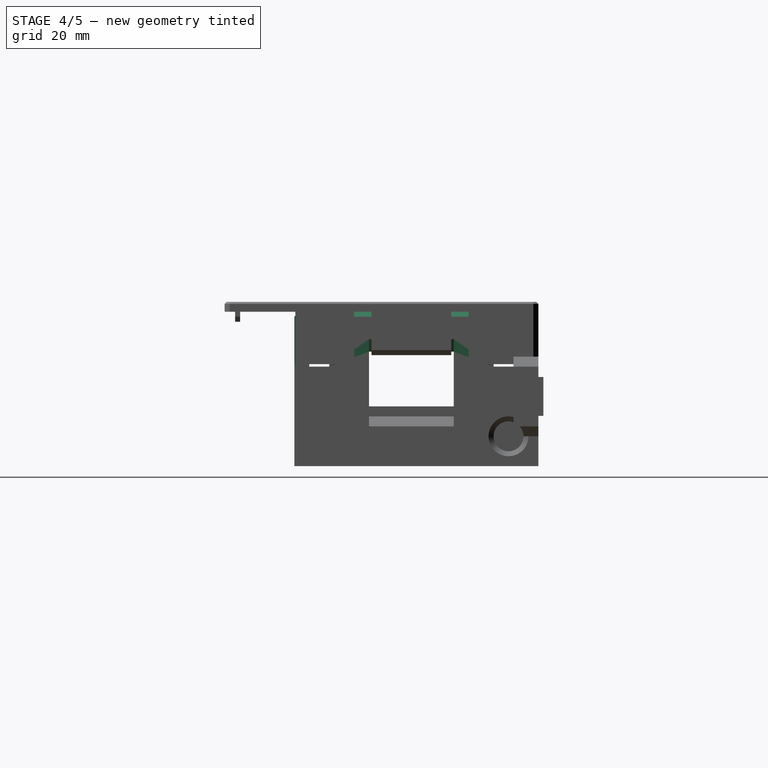
[diagram: stage 4 of 5 — right view after this stage's code; geometry added in this stage tinted green]
FEATURE [PartDesign::Body] Body  label="duct"
  Group = -> [Sketch,Sketch001,AdditiveLoft]
  Origin = -> Origin
  Tip = -> AdditiveLoft
FEATURE [Sketcher::SketchObject] Sketch002
  FullyConstrained = true
  MapMode = 5
  Support = -> [XY_Plane001]
  sketch-geometry (8):
    g0: LineSegment StartX=-44 StartY=23.5 StartZ=0 EndX=44 EndY=23.5 EndZ=0
    g1: LineSegment StartX=44 StartY=23.5 StartZ=0 EndX=44 EndY=-23.5 EndZ=0
    g2: LineSegment StartX=44 StartY=-23.5 StartZ=0 EndX=-44 EndY=-23.5 EndZ=0
    g3: LineSegment StartX=-44 StartY=-23.5 StartZ=0 EndX=-44 EndY=23.5 EndZ=0
    g4: Circle CenterX=-41 CenterY=20.5 CenterZ=0 NormalX=0 NormalY=0 NormalZ=1 AngleXU=0 Radius=1.65
    g5: Circle CenterX=-41 CenterY=-20.5 CenterZ=0 NormalX=0 NormalY=0 NormalZ=1 AngleXU=0 Radius=1.65
    g6: Circle CenterX=41 CenterY=20.5 CenterZ=0 NormalX=0 NormalY=0 NormalZ=1 AngleXU=0 Radius=1.65
    g7: Circle CenterX=41 CenterY=-20.5 CenterZ=0 NormalX=0 NormalY=0 NormalZ=1 AngleXU=0 Radius=1.65
  constraints (24):
    c: Coincident(g0,g1)
    c: Coincident(g1,g2)
    c: Coincident(g2,g3)
    c: Coincident(g3,g0)
    c: Horizontal(g0)
    c: Horizontal(g2)
    c: Vertical(g1)
    c: Vertical(g3)
    c: DistanceX(g0,g0) = 88
    c: DistanceX(g0,g-1) = 44
    c: DistanceY(g3,g3) = 47
    c: DistanceY(g-1,g0) = 23.5
    c: Radius(g4) = 1.65
    c: Radius(g5) = 1.65
    c: Radius(g6) = 1.65
    c: Radius(g7) = 1.65
    c: DistanceX(g4,g-1) = 41
    c: DistanceX(g-1,g6) = 41
    c: DistanceX(g5,g-1) = 41
    c: DistanceX(g-1,g7) = 41
    c: DistanceY(g-1,g4) = 20.5
    c: DistanceY(g5,g-1) = 20.5
    c: DistanceY(g-1,g6) = 20.5
    c: DistanceY(g7,g-1) = 20.5
FEATURE [Part::Box] Box  label="Cube"
  AttacherType = Attacher::AttachEngine3D
  Height = 3
  Length = 7
  Placement = pos=(-44,-23.5,0) rot=(0,0,1;0rad)
  Width = 7
FEATURE [Part::MultiFuse] Fusion
  Shapes = -> [Box003,Box002,Box001,Box]
FEATURE [Part::Fillet] Fillet
  Base = -> Fusion
  Edges = 4 edges r=3.5: [Edge3,Edge13,Edge29,Edge43]
  Placement = pos=(0,0,3) rot=(0,0,1;0rad)
FEATURE [Part::Cylinder] Cylinder
  Angle = 360
  AttacherType = Attacher::AttachEngine3D
  Height = 3
  Placement = pos=(16,16,0) rot=(0,0,1;0rad)
  Radius = 1.65
FEATURE [Part::Cylinder] Cylinder001
  Angle = 360
  AttacherType = Attacher::AttachEngine3D
  Height = 3
  Placement = pos=(-16,16,0) rot=(0,0,1;0rad)
  Radius = 1.65
FEATURE [Part::Cylinder] Cylinder002
  Angle = 360
  AttacherType = Attacher::AttachEngine3D
  Height = 3
  Placement = pos=(-16,-16,0) rot=(0,0,1;0rad)
  Radius = 1.65
FEATURE [Part::Cylinder] Cylinder003
  Angle = 360
  AttacherType = Attacher::AttachEngine3D
  Height = 3
  Placement = pos=(16,-16,0) rot=(0,0,1;0rad)
  Radius = 1.65
FEATURE [Part::Cylinder] Cylinder004
  Angle = 360
  AttacherType = Attacher::AttachEngine3D
  Height = 3
  Placement = pos=(16,-16,0) rot=(0,0,1;0rad)
  Radius = 3
FEATURE [Part::Cylinder] Cylinder005
  Angle = 360
  AttacherType = Attacher::AttachEngine3D
  Height = 3
  Placement = pos=(-16,-16,0) rot=(0,0,1;0rad)
  Radius = 3
FEATURE [Part::Cylinder] Cylinder006
  Angle = 360
  AttacherType = Attacher::AttachEngine3D
  Height = 3
  Placement = pos=(-16,16,0) rot=(0,0,1;0rad)
  Radius = 3
FEATURE [Part::Cylinder] Cylinder007
  Angle = 360
  AttacherType = Attacher::AttachEngine3D
  Height = 3
  Placement = pos=(16,16,0) rot=(0,0,1;0rad)
  Radius = 3
FEATURE [Part::MultiFuse] Fusion001
  Shapes = -> [Cylinder007,Cylinder006,Cylinder005,Cylinder004]
FEATURE [Part::Feature] Fusion001001
  Placement = pos=(0,0,3) rot=(0,0,1;0rad)
  shape: bbox 38 x 38 x 3 mm, 12 faces, 4 solids (baked)
FEATURE [Part::MultiFuse] Fusion001003
  Shapes = -> [Cylinder003,Cylinder,Cylinder001,Cylinder002]
FEATURE [Part::Cut] Cut001
  Base = -> Cut
  Tool = -> Fillet
FEATURE [Part::Cut] Cut002
  Base = -> Cut001
  Tool = -> Fusion001001
FEATURE [Part::MultiFuse] Fusion001007
  Shapes = -> [Cut002,Fusion001]
FEATURE [Part::Cut] Cut003
  Base = -> Fusion001007
  Tool = -> Fusion001003
FEATURE [Part::Fillet] Fillet001
  Base = -> Cut003
  Edges = 4 edges r=1: [Edge2,Edge8,Edge25,Edge49]
FEATURE [Part::MultiFuse] Fusion001021004009015004
  Shapes = -> [Cut015,Fillet001]
FEATURE [Part::Cut] Cut016
  Base = -> Fusion001021004009015004
  Tool = -> Fusion001009
FEATURE [Part::Chamfer] Chamfer010006
  Base = -> Cut016
  Edges = 2 edges r=2.5: [Edge164,Edge236]
FEATURE [Part::Chamfer] Chamfer010007  label="duct-hepa-mounter"
  Base = -> Chamfer010006
  Edges = 8 edges r=0.4: [Edge43,Edge65,Edge66,Edge67,Edge68,Edge69,Edge70,Edge71]
FEATURE [Part::Cut] Cut019003010005001003
  Base = -> Chamfer010007
  Placement = pos=(0,0,8) rot=(0,0,1;0rad)
  Tool = -> Box068
FEATURE [Part::Chamfer] Chamfer010015009
  Base = -> Cut019003010005001003
  Edges = 6 edges r=2: [Edge16,Edge26,Edge44,Edge76,Edge113,Edge123]
FEATURE [Part::MultiFuse] Fusion001021004009015013012
  Shapes = -> [Chamfer010015009,Fusion001021004009015013011]
FEATURE [Part::Box] Box069  label="Cube067"
  AttacherType = Attacher::AttachEngine3D
  Height = 8
  Length = 10
  Placement = pos=(-48.5,-8.5,12) rot=(0,0,1;0rad)
  Width = 17
FEATURE [Part::Box] Box070  label="Cube068"
  AttacherType = Attacher::AttachEngine3D
  Height = 8
  Length = 10
  Placement = pos=(40,-8.5,12) rot=(0,0,1;0rad)
  Width = 17
FEATURE [Part::MultiFuse] Fusion001021004009015013014
  Shapes = -> [Box070,Box069]
FEATURE [Part::Cut] Cut019003010005001004
  Base = -> Fusion001021004009015013012
  Tool = -> Fillet005015030015
FEATURE [Part::Cut] Cut019003010005001005
  Base = -> Cut019003010005001004
  Tool = -> Fusion001021004009015013014
FEATURE [Part::Cylinder] Cylinder038
  Angle = 360
  AttacherType = Attacher::AttachEngine3D
  Height = 10
  Placement = pos=(3.5,17,0) rot=(0,0,1;0rad)
  Radius = 1
FEATURE [Part::Cylinder] Cylinder039
  Angle = 360
  AttacherType = Attacher::AttachEngine3D
  Height = 10
  Placement = pos=(38.5,17,0) rot=(0,0,1;0rad)
  Radius = 1
FEATURE [Part::Cylinder] Cylinder040
  Angle = 360
  AttacherType = Attacher::AttachEngine3D
  Height = 10
  Placement = pos=(38.5,-18,0) rot=(0,0,1;0rad)
  Radius = 1
FEATURE [Part::Cylinder] Cylinder041
  Angle = 360
  AttacherType = Attacher::AttachEngine3D
  Height = 10
  Placement = pos=(3.5,-18,0) rot=(0,0,1;0rad)
  Radius = 1
FEATURE [Part::MultiFuse] Fusion001021004009015013018003
  Shapes = -> [Fusion001021004009015013017002,Cut019003010005001005]
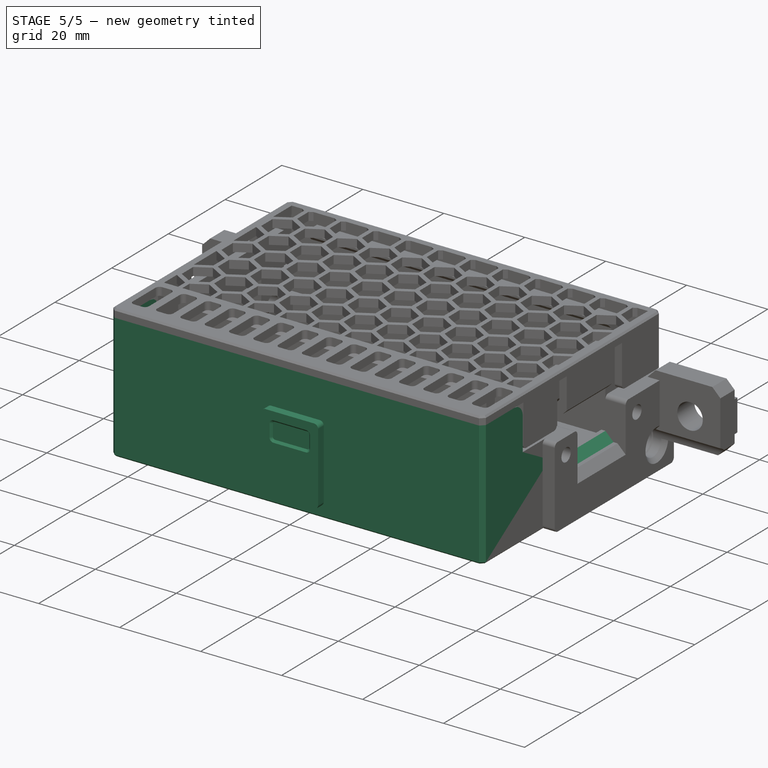
[diagram: stage 5 of 5 — iso view after this stage's code; geometry added in this stage tinted green]
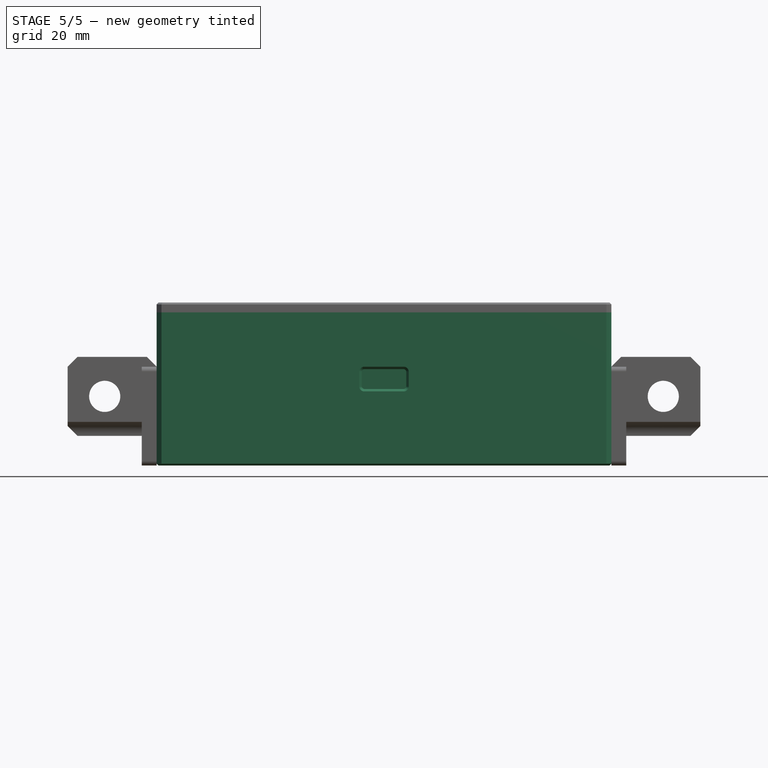
[diagram: stage 5 of 5 — front view after this stage's code; geometry added in this stage tinted green]
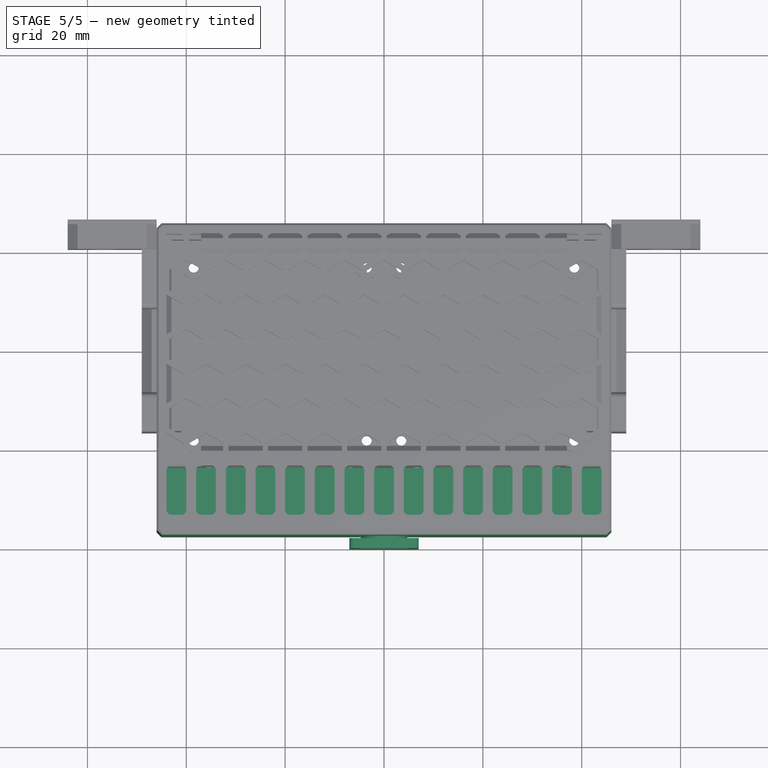
[diagram: stage 5 of 5 — top view after this stage's code; geometry added in this stage tinted green]
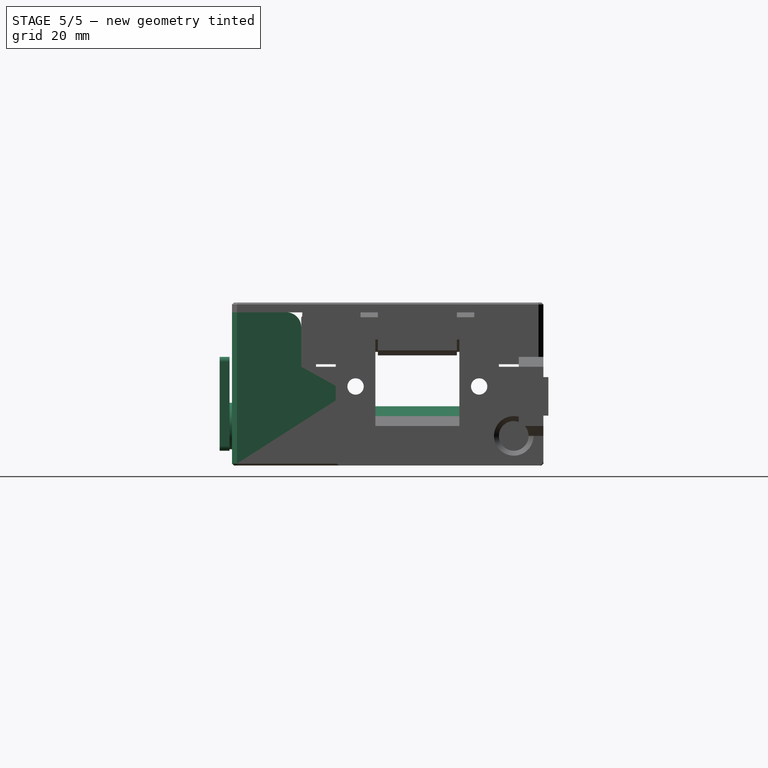
[diagram: stage 5 of 5 — right view after this stage's code; geometry added in this stage tinted green]
FEATURE [Part::Box] Box028  label="Cube028"
  AttacherType = Attacher::AttachEngine3D
  Height = 3
  Length = 92
  Placement = pos=(-46,-37.5,0) rot=(0,0,1;0rad)
  Width = 14
FEATURE [Part::Box] Box049  label="Cube047"
  AttacherType = Attacher::AttachEngine3D
  Height = 17
  Length = 10
  Placement = pos=(-5,-43.5,3) rot=(0,0,1;0rad)
  Width = 18
FEATURE [Part::Fillet] Fillet005015018
  Base = -> Box049
  Edges = 4 edges r=1: [Edge2,Edge4,Edge6,Edge8]
FEATURE [Part::Box] Box050  label="Cube048"
  AttacherType = Attacher::AttachEngine3D
  Height = 9.7
  Length = 14
  Placement = pos=(-7,-48,0) rot=(0,0,1;0rad)
  Width = 2
FEATURE [Part::Box] Box051  label="Cube049"
  AttacherType = Attacher::AttachEngine3D
  Height = 19
  Length = 14
  Placement = pos=(-7,-52.2,0) rot=(0,0,1;0rad)
  Width = 2
FEATURE [Part::Cylinder] Cylinder020
  Angle = 360
  AttacherType = Attacher::AttachEngine3D
  Height = 5
  Placement = pos=(0,-46.9,5) rot=(1,0,0;1.5708rad)
  Radius = 4.7
FEATURE [Part::Box] Box052  label="Cube050"
  AttacherType = Attacher::AttachEngine3D
  Height = 1.5
  Length = 12
  Placement = pos=(-6,-48,0) rot=(0,0,1;0rad)
  Width = 10.5
FEATURE [Part::Fillet] Fillet005015019
  Base = -> Box052
  Edges = 2 edges r=1: [Edge3,Edge7]
FEATURE [Part::Fillet] Fillet005015021
  Base = -> Box051
  Edges = 4 edges r=1: [Edge2,Edge4,Edge6,Edge8]
  Placement = pos=(0,-0.3,0) rot=(0,0,1;0rad)
FEATURE [Part::Fillet] Fillet005015022
  Base = -> Box050
  Edges = 5 edges r=1: [Edge2,Edge4,Edge6,Edge8,Edge12]
FEATURE [Part::Box] Box053  label="Cube051"
  AttacherType = Attacher::AttachEngine3D
  Height = 5
  Length = 10
  Placement = pos=(-5,-62,12) rot=(0,0,1;0rad)
  Width = 10
FEATURE [Part::Fillet] Fillet005015023
  Base = -> Box053
  Edges = 4 edges r=1: [Edge2,Edge4,Edge6,Edge8]
FEATURE [Part::Chamfer] Chamfer010009
  Base = -> Fillet005015023
  Edges = 8 edges r=0.5: [Edge3,Edge13,Edge15,Edge16,Edge17,Edge18,Edge19,Edge20]
FEATURE [Part::MultiFuse] Fusion001021004009015013010
  Shapes = -> [Fillet005015019,Fillet005015022,Cylinder020,Fillet005015021]
FEATURE [Part::Cut] Cut019003010005001002  label="level"
  Base = -> Fusion001021004009015013010
  Placement = pos=(0,12.5,3) rot=(0,0,1;0rad)
  Tool = -> Chamfer010009
FEATURE [Part::MultiFuse] Fusion001021004009015013018
  Shapes = -> [Cylinder038,Cylinder039,Cylinder040,Cylinder041]
FEATURE [Part::Feature] Fusion001021004009015013018001
  Placement = pos=(-42,0,0) rot=(0,0,1;0rad)
  shape: bbox 37 x 37 x 10 mm, 12 faces, 4 solids (baked)
FEATURE [Part::MultiFuse] Fusion001021004009015013018002
  Shapes = -> [Fusion001021004009015013018001,Fusion001021004009015013018]
FEATURE [Part::Cut] Cut019003010005001006
  Base = -> Fusion001021004009015013018003
  Tool = -> Fusion001021004009015013018002
FEATURE [Part::Box] Box073  label="Cube071"
  AttacherType = Attacher::AttachEngine3D
  Height = 31
  Length = 2
  Placement = pos=(-46,-37.5,0) rot=(0,0,1;0rad)
  Width = 14
FEATURE [Part::Box] Box074  label="Cube072"
  AttacherType = Attacher::AttachEngine3D
  Height = 31
  Length = 2
  Placement = pos=(44,-37.5,0) rot=(0,0,1;0rad)
  Width = 14
FEATURE [Part::Box] Box075  label="Cube073"
  AttacherType = Attacher::AttachEngine3D
  Height = 31
  Length = 92
  Placement = pos=(-46,-37.5,0) rot=(0,0,1;0rad)
  Width = 2
FEATURE [Part::Cut] Cut019003010005001007
  Base = -> Box075
  Tool = -> Fillet005015018
FEATURE [Part::Fillet] Fillet005015030016
  Base = -> Box073
  Edges = 1 edges r=3: [Edge12]
FEATURE [Part::Fillet] Fillet005015030017
  Base = -> Box074
  Edges = 1 edges r=3: [Edge12]
FEATURE [Part::Feature] Chamfer010015011003
  Placement = pos=(-20,0,0) rot=(0,0,1;0rad)
  shape: bbox 2 x 2 x 23 mm, 13 faces (baked)
FEATURE [Part::Feature] Chamfer010015011004
  Placement = pos=(20,0,0) rot=(0,0,1;0rad)
  shape: bbox 2 x 2 x 23 mm, 13 faces (baked)
FEATURE [Part::Feature] Chamfer010015011005
  Placement = pos=(35,0,0) rot=(0,0,1;0rad)
  shape: bbox 2 x 2 x 23 mm, 13 faces (baked)
FEATURE [Part::Feature] Chamfer010015011006
  Placement = pos=(-35,0,0) rot=(0,0,1;0rad)
  shape: bbox 2 x 2 x 23 mm, 13 faces (baked)
FEATURE [Part::MultiFuse] Fusion001021004009015013018004
  Shapes = -> [Chamfer010015011006,Chamfer010015011005,Chamfer010015011004,Chamfer010015011003]
FEATURE [Part::MultiFuse] Fusion001021004009015013018005
  Shapes = -> [Box028,Fusion001021004009015013018004]
FEATURE [Part::Cut] Cut019003010005001008
  Base = -> Cut019003010005001006
  Tool = -> Fusion001021004009015013018006
FEATURE [Part::Chamfer] Chamfer010015011007
  Base = -> Cut019003010005001008
  Edges = 2 edges r=2: [Edge113,Edge218]
FEATURE [Part::Cut] Cut019003010005001009
  Base = -> Chamfer010015011007
  Tool = -> Fusion001021004009015013018007
FEATURE [Part::MultiFuse] Fusion001021004009015013018008
  Shapes = -> [Cut019003010005001007,Fusion001021004009015013018005,Fillet005015030016,Fillet005015030017,Cut019003010005001009]
FEATURE [Part::Refine] Fusion001021004009015013018008001
  Source = -> Fusion001021004009015013018008
FEATURE [Part::Chamfer] Chamfer010015011008
  Base = -> Fusion001021004009015013018008001
  Edges = 4 edges r=1: [Edge164,Edge171,Edge346,Edge479]
FEATURE [Part::Fillet] Fillet005015030018
  Base = -> Chamfer010015011008
  Edges = 4 edges r=1: [Edge52,Edge53,Edge61,Edge368]
FEATURE [Part::Chamfer] Chamfer010015011009
  Base = -> Fillet005015030018
  Edges = 8 edges r=0.4: [Edge9,Edge59,Edge63,Edge64,Edge65,Edge66,Edge67,Edge68]
FEATURE [Part::Chamfer] Chamfer010015011010
  Base = -> Chamfer010015011009
  Edges = 4 edges r=0.4: [Edge14,Edge15,Edge149,Edge150]
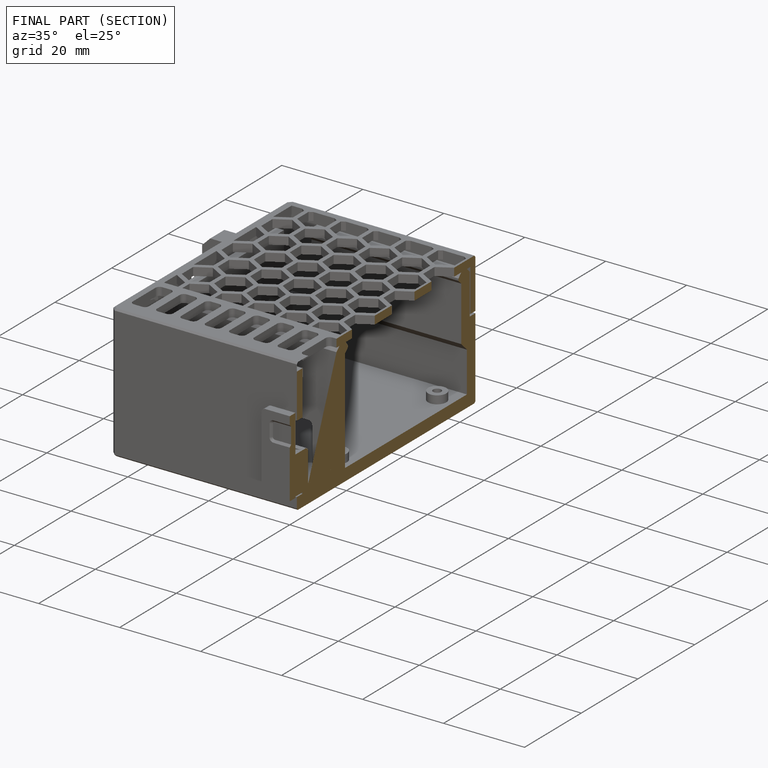
[diagram: finished part — half-section view (interior)]
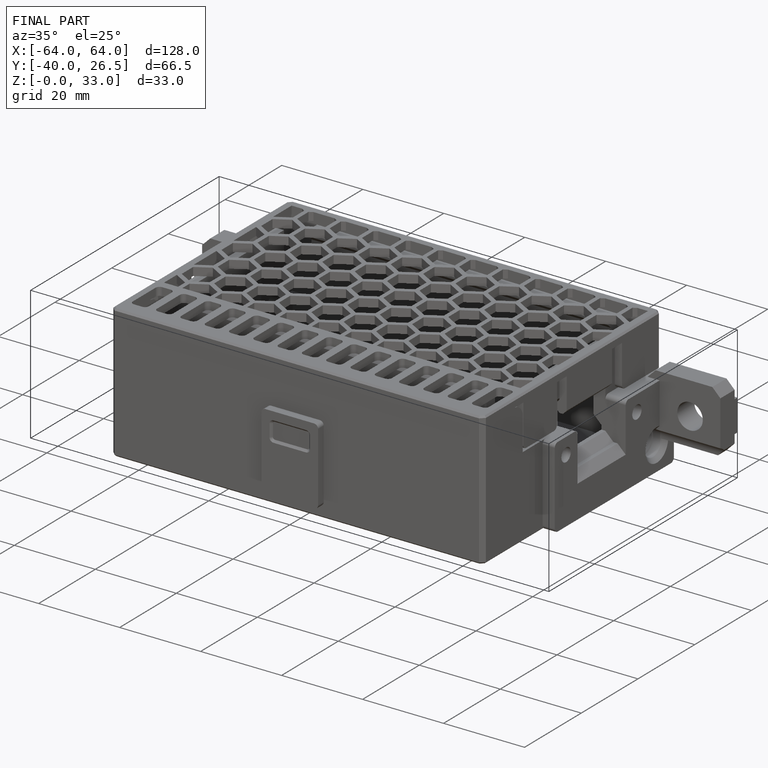
[diagram: finished part — iso view with bounding-box wireframe]
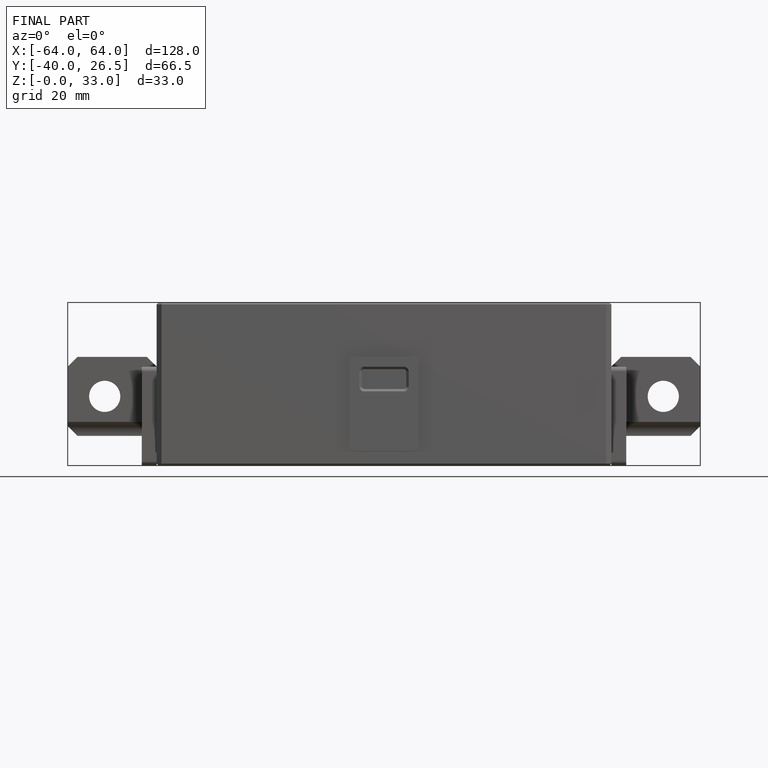
[diagram: finished part — front view with bounding-box wireframe]
